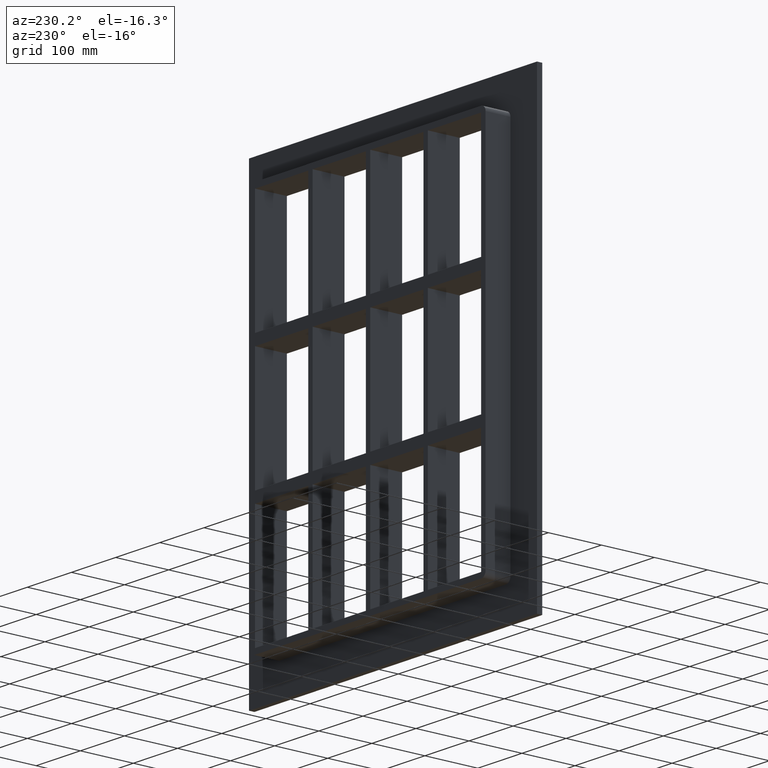
[diagram: clean part render]
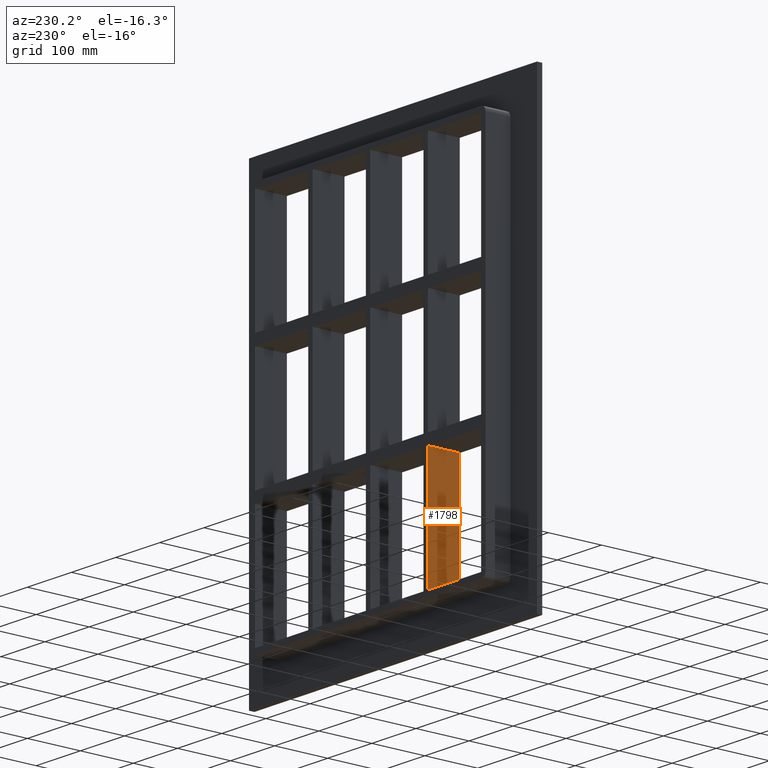
[diagram: same view with one face highlighted and labeled with its STEP entity id]
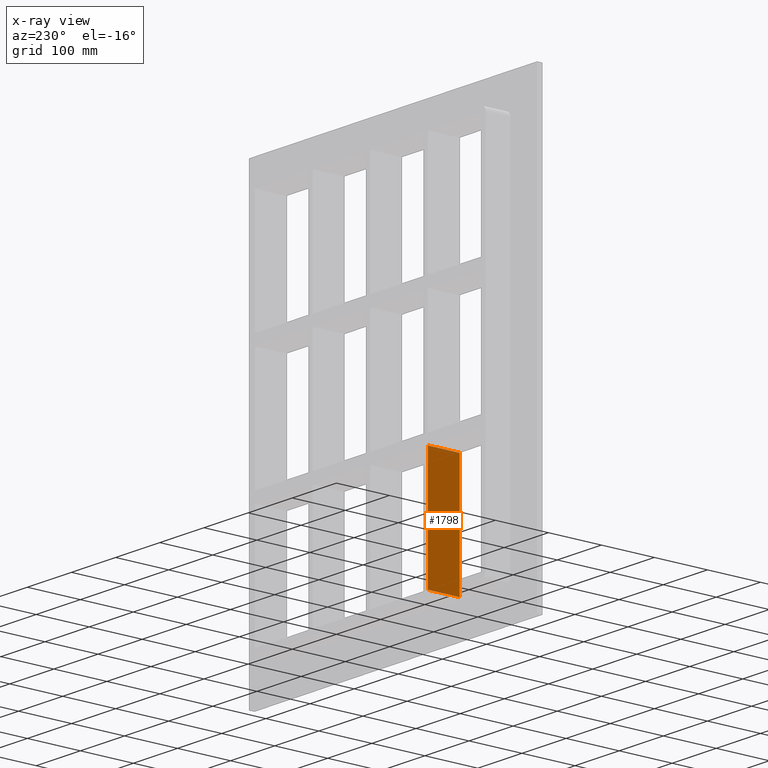
[diagram: x-ray of the same camera — body ghosted, the highlighted face saturated]
A machine part, auxiliary view. The second image highlights one B-rep face of the part: STEP entity #1798.
The next image is the same camera in x-ray: the body ghosted, the highlighted face saturated — about 0% of this face is hidden behind the body in this view.
In plain terms, the highlighted planar face has unit normal (-1, 0, 0).
Its self-contained STEP definition (entity closure, byte-faithful):
#902=CARTESIAN_POINT('',(-135.50000000000136,57.0,-346.99999999999994));
#903=VERTEX_POINT('',#902);
#910=CARTESIAN_POINT('',(-135.50000000000139,57.0,-129.00000000000941));
#911=VERTEX_POINT('',#910);
#912=CARTESIAN_POINT('',(-135.50000000000136,57.0,-346.99999999999994));
#913=DIRECTION('',(0.0,0.0,1.0));
#914=VECTOR('',#913,217.99999999999056);
#915=LINE('',#912,#914);
#916=EDGE_CURVE('',#903,#911,#915,.T.);
#1549=CARTESIAN_POINT('',(-135.50000000000139,-3.0,-129.00000000000941));
#1550=VERTEX_POINT('',#1549);
#1559=CARTESIAN_POINT('',(-135.50000000000136,-3.0,-346.99999999999994));
#1560=VERTEX_POINT('',#1559);
#1561=CARTESIAN_POINT('',(-135.50000000000136,-3.0,-346.99999999999994));
#1562=DIRECTION('',(0.0,0.0,1.0));
#1563=VECTOR('',#1562,217.99999999999056);
#1564=LINE('',#1561,#1563);
#1565=EDGE_CURVE('',#1560,#1550,#1564,.T.);
#1700=CARTESIAN_POINT('',(-135.50000000000139,-3.0,-129.00000000000941));
#1701=DIRECTION('',(0.0,1.0,0.0));
#1702=VECTOR('',#1701,60.0);
#1703=LINE('',#1700,#1702);
#1704=EDGE_CURVE('',#1550,#911,#1703,.T.);
#1782=CARTESIAN_POINT('',(-135.50000000000136,-3.0,-346.99999999999994));
#1783=DIRECTION('',(-1.0,0.0,0.0));
#1784=DIRECTION('',(0.0,0.0,1.0));
#1785=AXIS2_PLACEMENT_3D('',#1782,#1783,#1784);
#1786=PLANE('',#1785);
#1787=ORIENTED_EDGE('',*,*,#1704,.T.);
#1788=ORIENTED_EDGE('',*,*,#916,.F.);
#1789=CARTESIAN_POINT('',(-135.50000000000136,-3.0,-346.99999999999994));
#1790=DIRECTION('',(0.0,1.0,0.0));
#1791=VECTOR('',#1790,60.000000000000007);
#1792=LINE('',#1789,#1791);
#1793=EDGE_CURVE('',#1560,#903,#1792,.T.);
#1794=ORIENTED_EDGE('',*,*,#1793,.F.);
#1795=ORIENTED_EDGE('',*,*,#1565,.T.);
#1796=EDGE_LOOP('',(#1787,#1788,#1794,#1795));
#1797=FACE_OUTER_BOUND('',#1796,.T.);
#1798=ADVANCED_FACE('',(#1797),#1786,.T.);